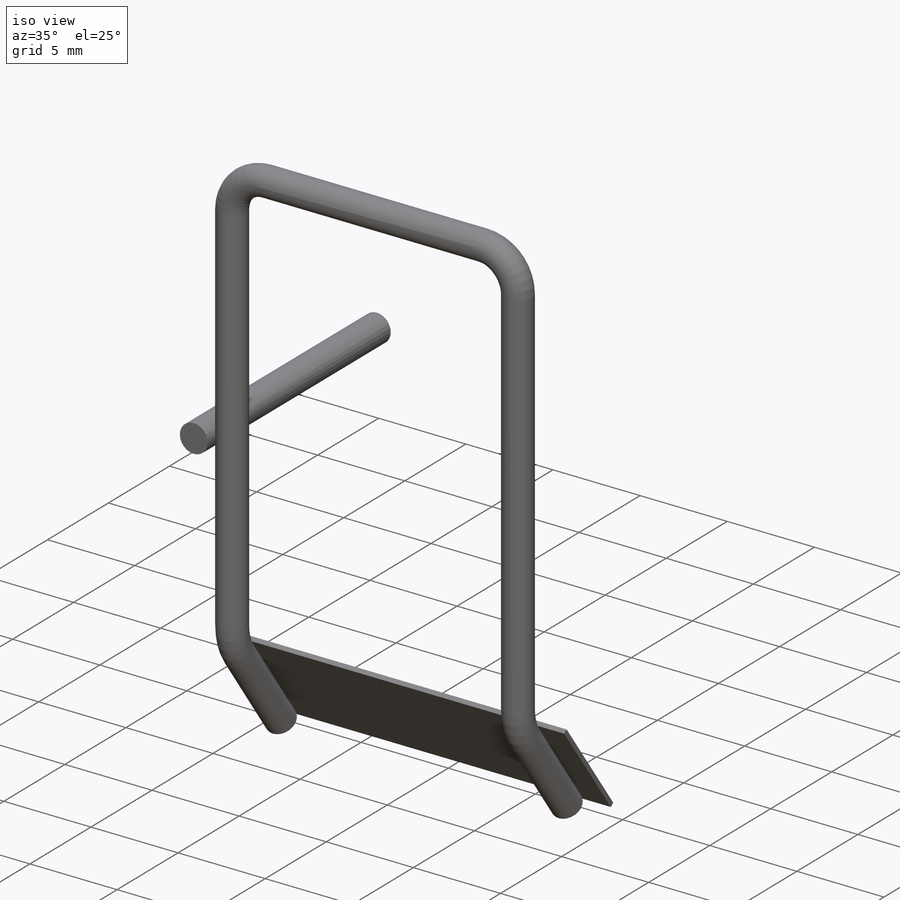
[diagram: iso view]
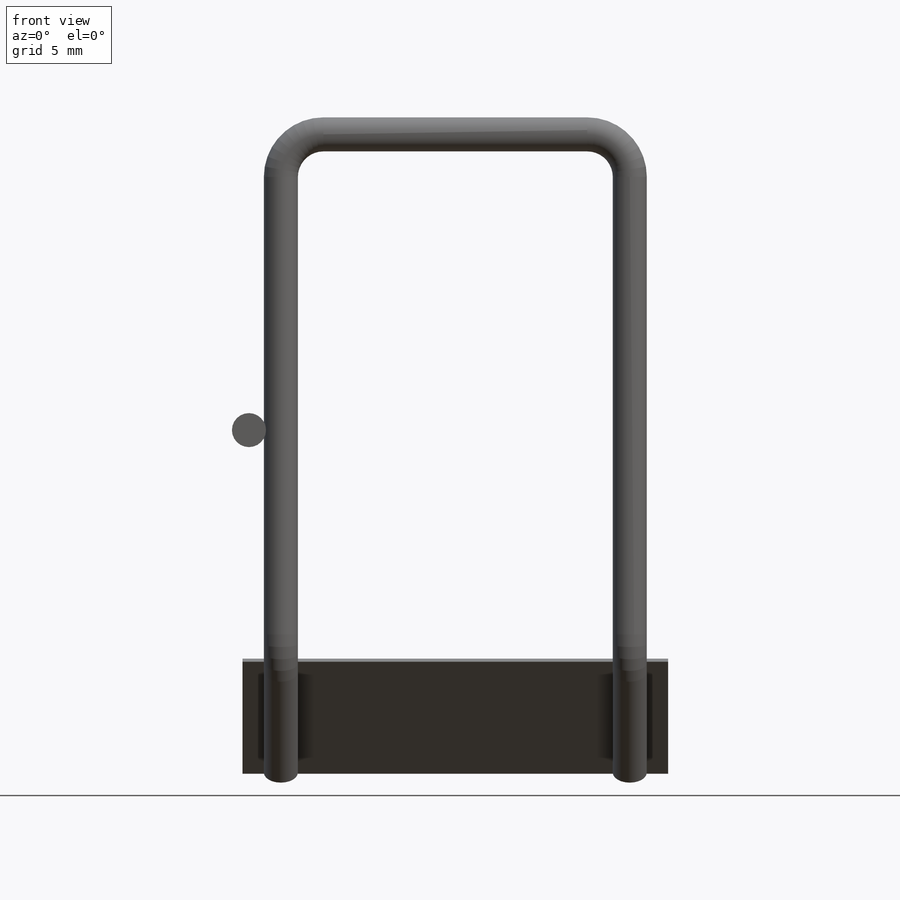
[diagram: front view]
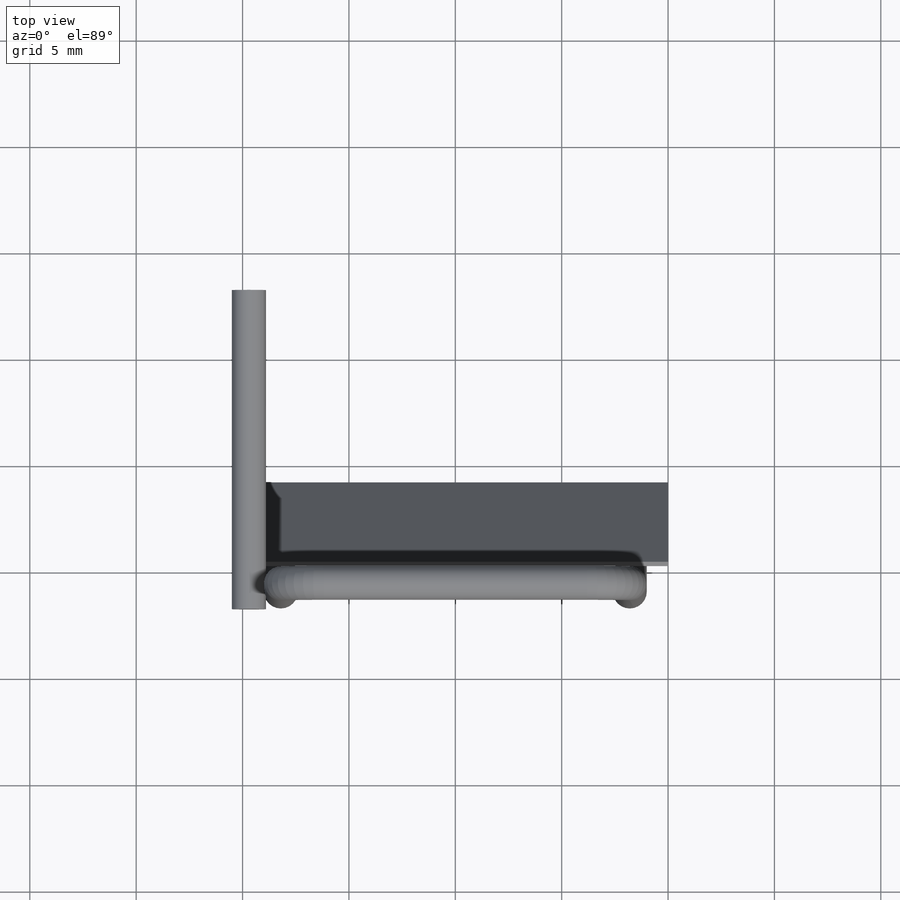
[diagram: top view]
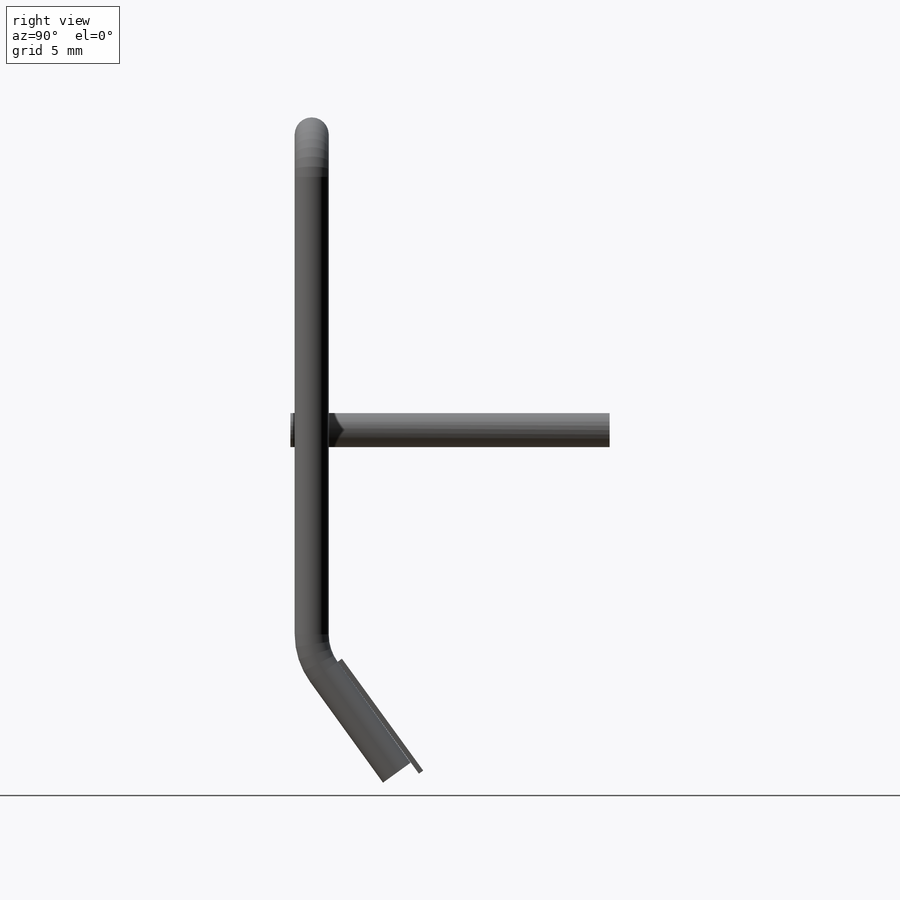
[diagram: right view]
SOLIDWORKS PART (.sldprt)
format: sldprt  version: not decoded by parser v0  size: 200,704 bytes
history: native  units: mm
features: sketch x4, plane x2, material x1, sweep x1, extrude x1 (+12 scaffold rows collapsed)
feature tree (21):
  scaffold x12  (default folders/planes/origin — collapsed)
  material  "Chrome Stainless Steel"
  plane  "Plane1"  Offset=17mm
  sketch  "3DSketch3"  dims[c1.D4=3.0mm c1.D8=2.0mm c1.D1=8.2mm c1.D2=8.2mm c1.D3=4.0mm c2.D4=~57.173925mm c2.D5=6.5mm c2.D6=6.5mm c2.D7=30.0mm]
  plane  "Plane2"
  sketch  "Sketch2"  dims[D1=1.6mm]
  sweep  "Sweep1"
  sketch  "Sketch3"  dims[D2=1.6mm D1=9.7mm]
  extrude  "Extrude1"  Depth=5mm
  sketch  "Sketch4"  dims[c1.D1=6.5mm c1.D2=6.5mm c2.D2=54.0deg c2.D1=10.0mm c3.D2=10.0mm c3.D5=0.25mm c3.D6=1.0mm c3.D7=5.0mm]
decode coverage: 5 of 6 modeling features carry decoded parameters
note: ~ marks probable driven/reference dimensions
note: suppression state not decoded; provenance and decode notes live in map.json
